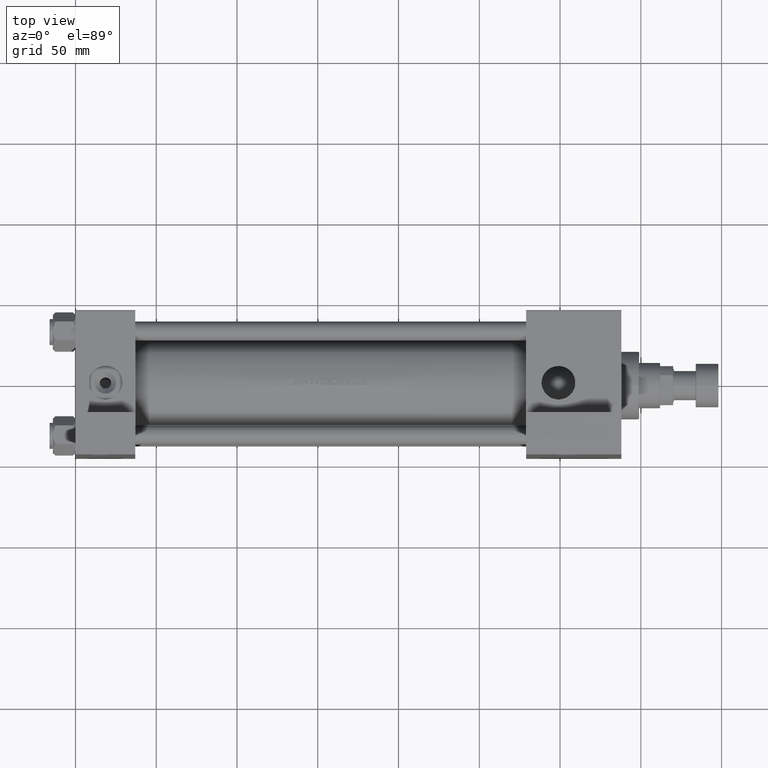
[diagram: clean part render]
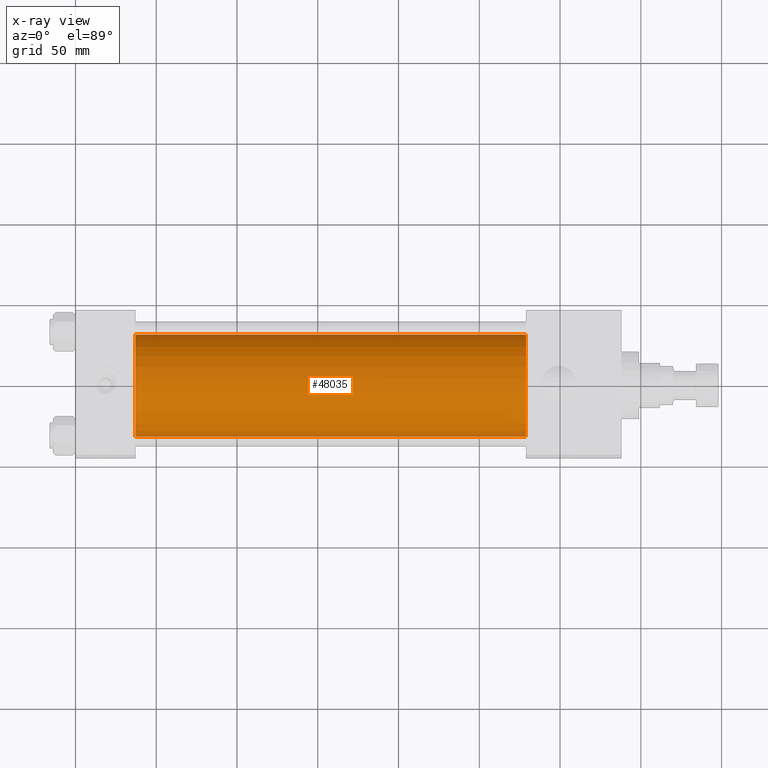
[diagram: x-ray — body ghosted, one internal face saturated and labeled with its STEP entity id]
A machine part, top view, then the same camera in x-ray: the body is ghosted and one INTERNAL B-rep face — a face not visible from any outside direction — is saturated and labeled: STEP entity #48035.
In plain terms, the highlighted cylindrical surface (partial cylindrical patch) has radius 31.5 mm, axis along (-1, -0, 0).
Its self-contained STEP definition (entity closure, byte-faithful):
#1304 = CARTESIAN_POINT ( 'NONE',  ( 278.9999999999999432, 0.000000000000000000, -1.000000000000007772 ) ) ;
#1394 = EDGE_CURVE ( 'NONE', #42520, #17132, #14266, .T. ) ;
#2247 = DIRECTION ( 'NONE',  ( -1.000000000000000000, -0.000000000000000000, -0.000000000000000000 ) ) ;
#2666 = CARTESIAN_POINT ( 'NONE',  ( 278.9999999999999432, 0.000000000000000000, 30.49999999999999289 ) ) ;
#3807 = AXIS2_PLACEMENT_3D ( 'NONE', #1304, #44628, #21318 ) ;
#5817 = LINE ( 'NONE', #48637, #32622 ) ;
#6679 = CARTESIAN_POINT ( 'NONE',  ( 278.9999999999999432, 3.857637417314162689E-15, -32.50000000000000711 ) ) ;
#6957 = EDGE_CURVE ( 'NONE', #18641, #42520, #25647, .T. ) ;
#9783 = CARTESIAN_POINT ( 'NONE',  ( 278.9999999999999432, 3.857637417314162689E-15, -32.50000000000000711 ) ) ;
#10838 = EDGE_CURVE ( 'NONE', #45267, #17132, #26583, .T. ) ;
#12364 = ORIENTED_EDGE ( 'NONE', *, *, #10838, .F. ) ;
#12586 = FACE_OUTER_BOUND ( 'NONE', #29580, .T. ) ;
#14266 = LINE ( 'NONE', #6679, #21541 ) ;
#16612 = CARTESIAN_POINT ( 'NONE',  ( 37.00000000000000000, 0.000000000000000000, -1.000000000000007772 ) ) ;
#16654 = CYLINDRICAL_SURFACE ( 'NONE', #27498, 31.50000000000000000 ) ;
#17132 = VERTEX_POINT ( 'NONE', #31213 ) ;
#17707 = AXIS2_PLACEMENT_3D ( 'NONE', #16612, #32839, #23955 ) ;
#18641 = VERTEX_POINT ( 'NONE', #2666 ) ;
#20197 = CARTESIAN_POINT ( 'NONE',  ( 278.9999999999999432, 0.000000000000000000, -1.000000000000007772 ) ) ;
#21318 = DIRECTION ( 'NONE',  ( 0.000000000000000000, 0.000000000000000000, -1.000000000000000000 ) ) ;
#21541 = VECTOR ( 'NONE', #22127, 1000.000000000000000 ) ;
#22093 = EDGE_CURVE ( 'NONE', #18641, #45267, #5817, .T. ) ;
#22127 = DIRECTION ( 'NONE',  ( -1.000000000000000000, -0.000000000000000000, -0.000000000000000000 ) ) ;
#23955 = DIRECTION ( 'NONE',  ( 0.000000000000000000, 0.000000000000000000, -1.000000000000000000 ) ) ;
#25647 = CIRCLE ( 'NONE', #3807, 31.50000000000000000 ) ;
#26583 = CIRCLE ( 'NONE', #17707, 31.50000000000000000 ) ;
#27498 = AXIS2_PLACEMENT_3D ( 'NONE', #20197, #35939, #31372 ) ;
#29580 = EDGE_LOOP ( 'NONE', ( #36468, #49831, #12364, #39230 ) ) ;
#31213 = CARTESIAN_POINT ( 'NONE',  ( 37.00000000000000000, 3.857637417314162689E-15, -32.50000000000000711 ) ) ;
#31372 = DIRECTION ( 'NONE',  ( 0.000000000000000000, 0.000000000000000000, 1.000000000000000000 ) ) ;
#32622 = VECTOR ( 'NONE', #2247, 1000.000000000000000 ) ;
#32839 = DIRECTION ( 'NONE',  ( 1.000000000000000000, 0.000000000000000000, 0.000000000000000000 ) ) ;
#35939 = DIRECTION ( 'NONE',  ( -1.000000000000000000, -0.000000000000000000, -0.000000000000000000 ) ) ;
#36468 = ORIENTED_EDGE ( 'NONE', *, *, #6957, .T. ) ;
#39230 = ORIENTED_EDGE ( 'NONE', *, *, #22093, .F. ) ;
#41706 = CARTESIAN_POINT ( 'NONE',  ( 37.00000000000000000, 0.000000000000000000, 30.49999999999999289 ) ) ;
#42520 = VERTEX_POINT ( 'NONE', #9783 ) ;
#44628 = DIRECTION ( 'NONE',  ( 1.000000000000000000, 0.000000000000000000, 0.000000000000000000 ) ) ;
#45267 = VERTEX_POINT ( 'NONE', #41706 ) ;
#48035 = ADVANCED_FACE ( 'NONE', ( #12586 ), #16654, .F. ) ;
#48637 = CARTESIAN_POINT ( 'NONE',  ( 278.9999999999999432, 0.000000000000000000, 30.49999999999999289 ) ) ;
#49831 = ORIENTED_EDGE ( 'NONE', *, *, #1394, .T. ) ;